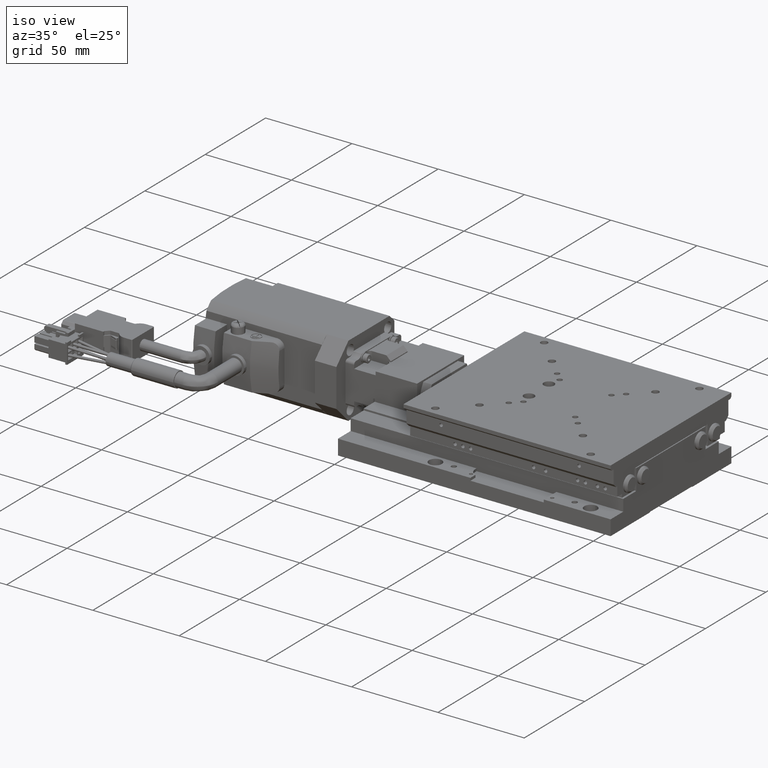
[diagram: clean part render]
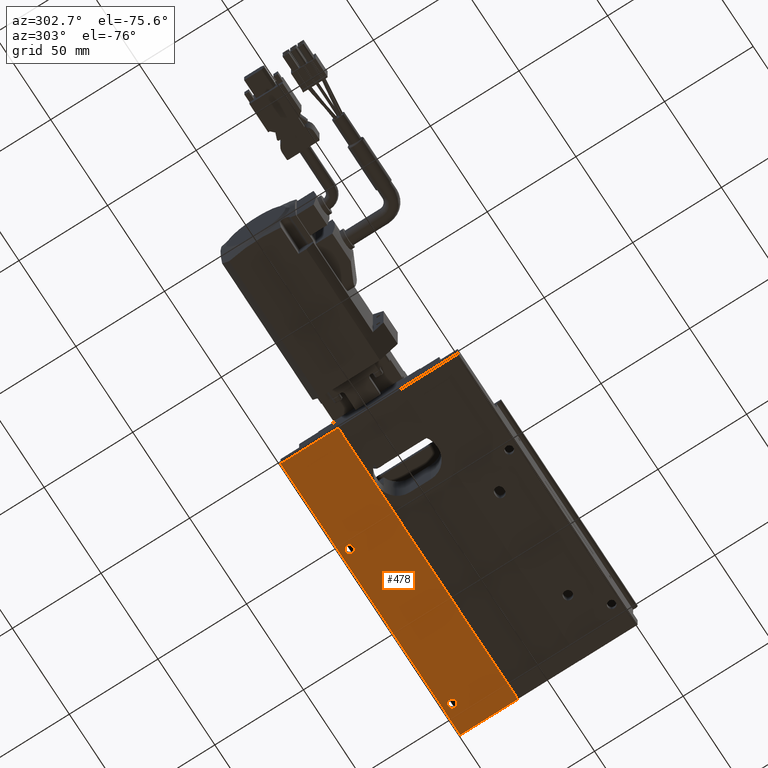
[diagram: tour spotlight — one face highlighted and labeled with its STEP entity id]
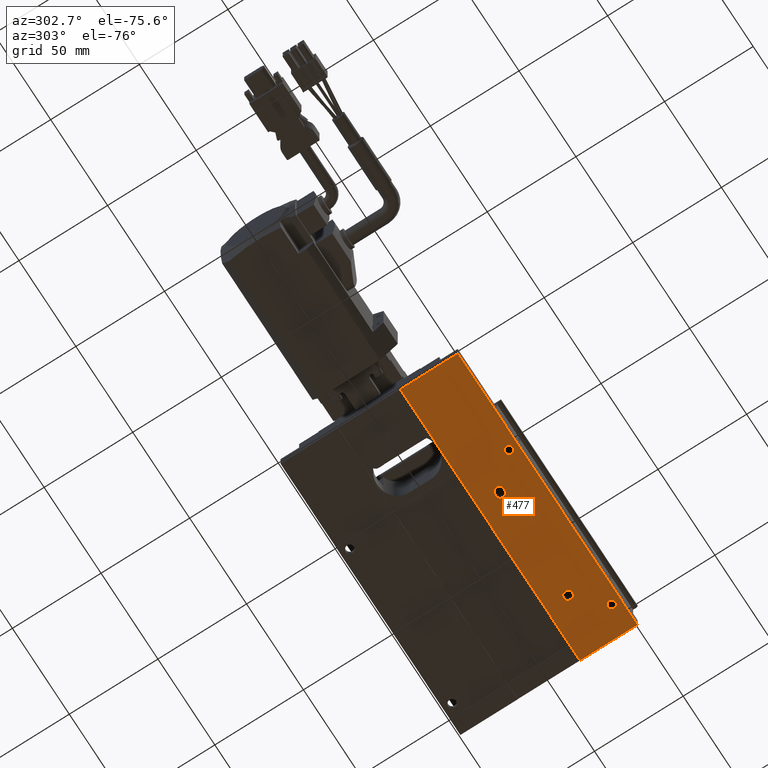
[diagram: tour spotlight — one face highlighted and labeled with its STEP entity id]
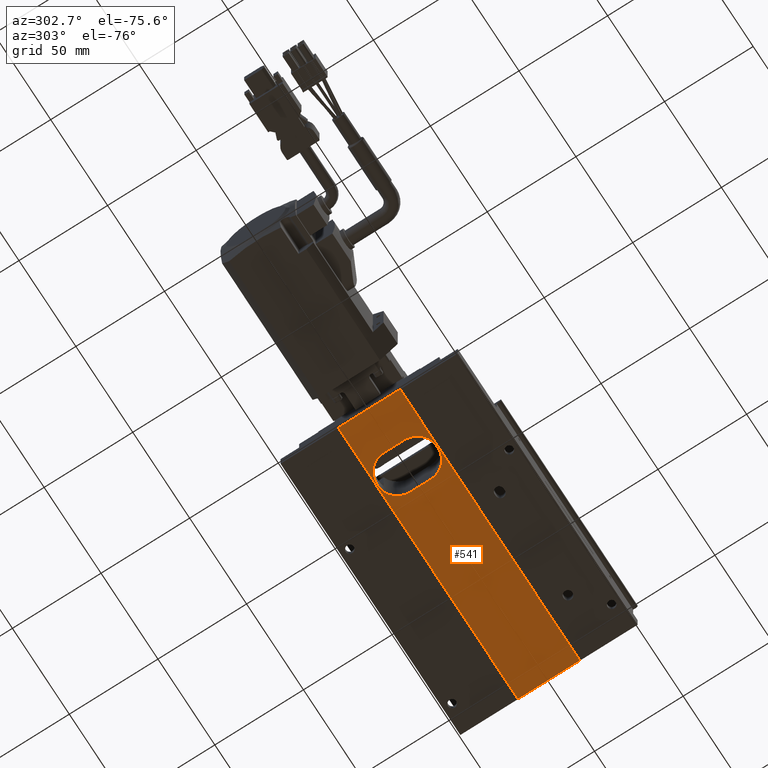
[diagram: tour spotlight — one face highlighted and labeled with its STEP entity id]
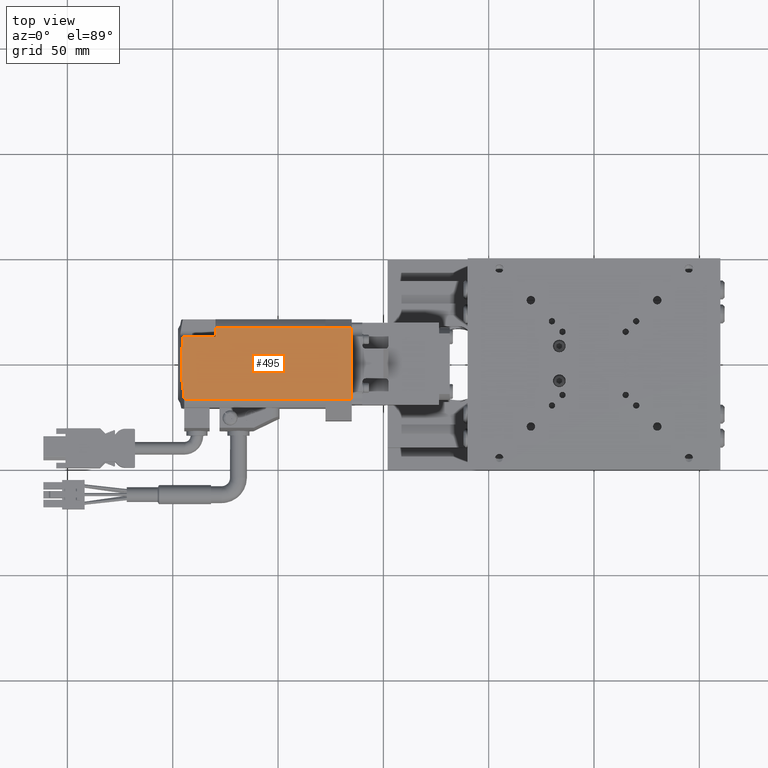
[diagram: tour spotlight — one face highlighted and labeled with its STEP entity id]
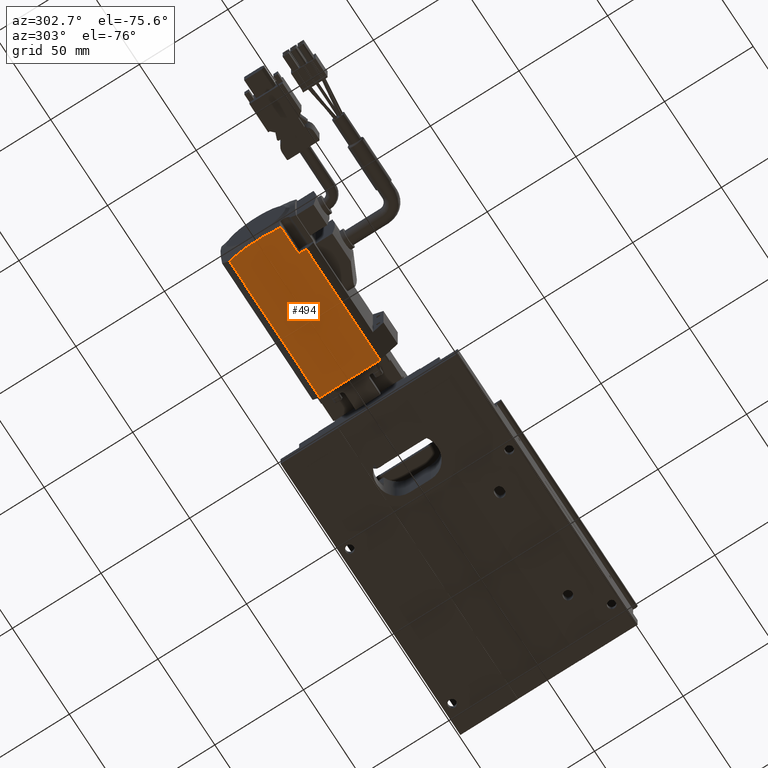
[diagram: tour spotlight — one face highlighted and labeled with its STEP entity id]
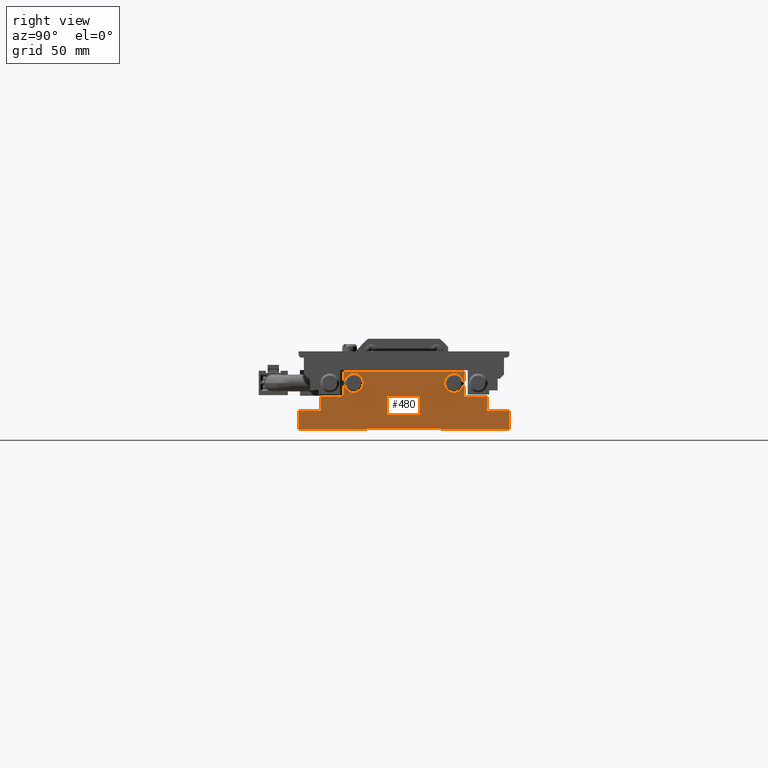
[diagram: tour spotlight — one face highlighted and labeled with its STEP entity id]
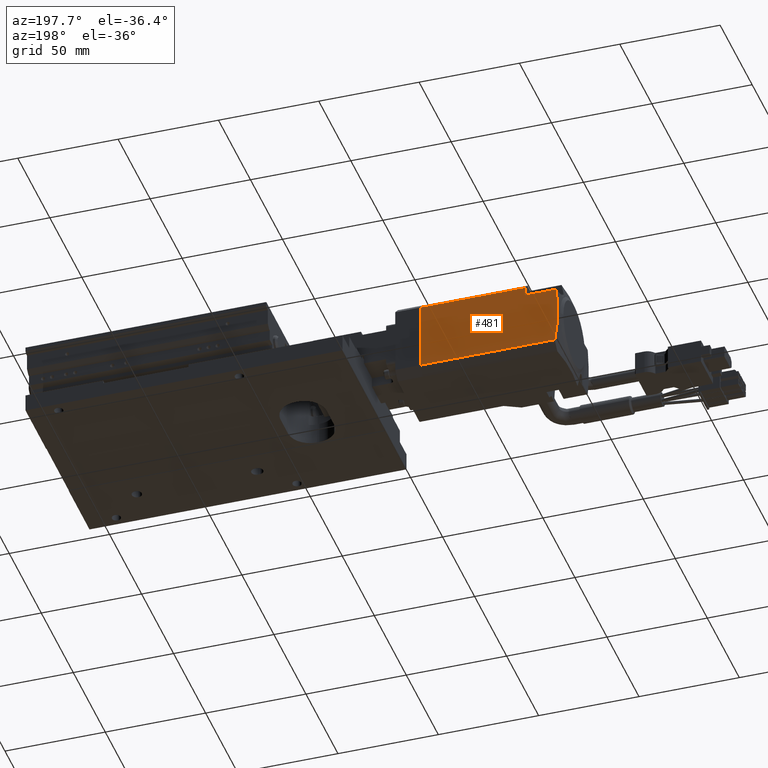
[diagram: tour spotlight — one face highlighted and labeled with its STEP entity id]
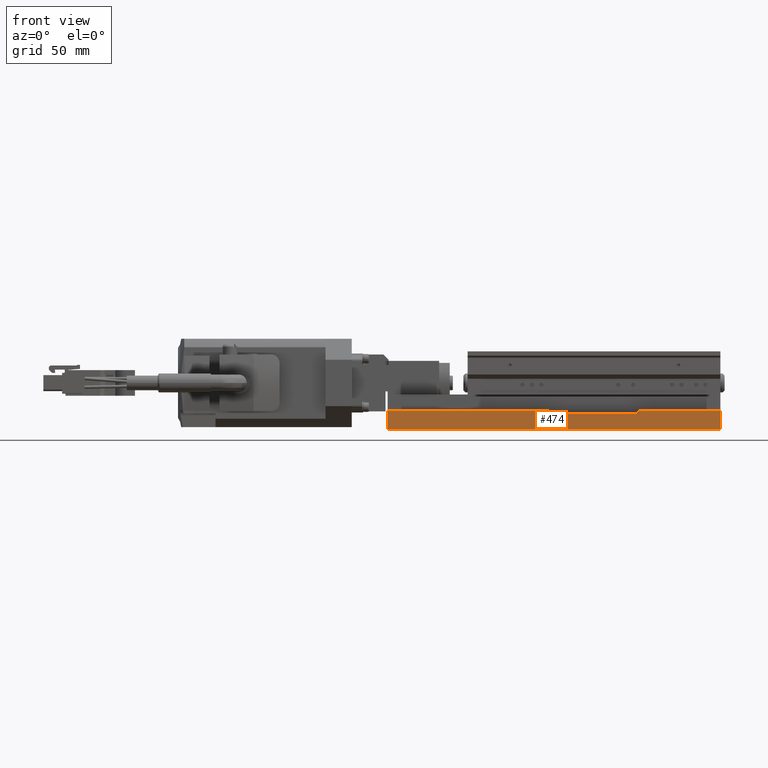
[diagram: tour spotlight — one face highlighted and labeled with its STEP entity id]
A machine part: a face-by-face anatomy tour. The part has 1264 B-rep faces; the first image is the clean iso view, then the 8 largest visible faces are spotlighted one at a time (largest first), each with its STEP entity span.

Face 1 — auxiliary view, entity #478. In plain terms, the highlighted planar face has unit normal (0, 0, -1).
Definition (entity closure, byte-faithful):
#478=ADVANCED_FACE('',(#5124,#5125,#5126),#5123,.T.);
#5123=PLANE('',#16819);
#5124=FACE_OUTER_BOUND('',#16820,.T.);
#5125=FACE_BOUND('',#16821,.T.);
#5126=FACE_BOUND('',#16822,.T.);
#16816=CARTESIAN_POINT('',(7.00000000000E+01,5.32500000000E+01,6.93889390391E-15));
#16817=DIRECTION('',(0.00000000000E+00,0.00000000000E+00,-1.00000000000E+00));
#16818=DIRECTION('',(0.00000000000E+00,-1.00000000000E+00,0.00000000000E+00));
#16819=AXIS2_PLACEMENT_3D('',#16816,#16817,#16818);
#16820=EDGE_LOOP('',(#23971,#23972,#23973,#23974));
#16821=EDGE_LOOP('',(#23975,#23976));
#16822=EDGE_LOOP('',(#23977,#23978));
#23971=ORIENTED_EDGE('',*,*,#29362,.F.);
#23972=ORIENTED_EDGE('',*,*,#29363,.F.);
#23973=ORIENTED_EDGE('',*,*,#29364,.T.);
#23974=ORIENTED_EDGE('',*,*,#29365,.T.);
#23975=ORIENTED_EDGE('',*,*,#29366,.T.);
#23976=ORIENTED_EDGE('',*,*,#29367,.T.);
#23977=ORIENTED_EDGE('',*,*,#29368,.T.);
#23978=ORIENTED_EDGE('',*,*,#29369,.T.);
#29362=EDGE_CURVE('',#38106,#38107,#38108,.T.);
#29363=EDGE_CURVE('',#38114,#38106,#38115,.T.);
#29364=EDGE_CURVE('',#38114,#38121,#38122,.T.);
#29365=EDGE_CURVE('',#38121,#38107,#38128,.T.);
#29366=EDGE_CURVE('',#38134,#38135,#38136,.T.);
#29367=EDGE_CURVE('',#38135,#38134,#38142,.T.);
#29368=EDGE_CURVE('',#38148,#38149,#38150,.T.);
#29369=EDGE_CURVE('',#38149,#38148,#38156,.T.);
#38106=VERTEX_POINT('',#55825);
#38107=VERTEX_POINT('',#55826);
#38108=LINE('',#55827,#55828);
#38114=VERTEX_POINT('',#55830);
#38115=LINE('',#55831,#55832);
#38121=VERTEX_POINT('',#55834);
#38122=LINE('',#55835,#55836);
#38128=LINE('',#55838,#55839);
#38134=VERTEX_POINT('',#55841);
#38135=VERTEX_POINT('',#55842);
#38136=CIRCLE('',#55846,2.25000000000E+00);
#38142=CIRCLE('',#55850,2.25000000000E+00);
#38148=VERTEX_POINT('',#55851);
#38149=VERTEX_POINT('',#55852);
#38150=CIRCLE('',#55856,2.25000000000E+00);
#38156=CIRCLE('',#55860,2.25000000000E+00);
#55825=CARTESIAN_POINT('',(-9.80000000000E+01,1.75000000000E+01,-3.46944695195E-15));
#55826=CARTESIAN_POINT('',(6.00000000000E+01,1.75000000000E+01,-3.46944695195E-15));
#55827=CARTESIAN_POINT('',(-9.80000000000E+01,1.75000000000E+01,-3.46944695195E-15));
#55828=VECTOR('',#55829,1.58000000000E+02);
#55829=DIRECTION('',(1.00000000000E+00,0.00000000000E+00,0.00000000000E+00));
#55830=CARTESIAN_POINT('',(-9.80000000000E+01,5.00000000000E+01,6.93889390391E-15));
#55831=CARTESIAN_POINT('',(-9.80000000000E+01,5.00000000000E+01,6.93889390391E-15));
#55832=VECTOR('',#55833,3.25000000000E+01);
#55833=DIRECTION('',(0.00000000000E+00,-1.00000000000E+00,0.00000000000E+00));
#55834=CARTESIAN_POINT('',(6.00000000000E+01,5.00000000000E+01,6.93889390391E-15));
#55835=CARTESIAN_POINT('',(-9.80000000000E+01,5.00000000000E+01,6.93889390391E-15));
#55836=VECTOR('',#55837,1.58000000000E+02);
#55837=DIRECTION('',(1.00000000000E+00,0.00000000000E+00,0.00000000000E+00));
#55838=CARTESIAN_POINT('',(6.00000000000E+01,5.00000000000E+01,6.93889390391E-15));
#55839=VECTOR('',#55840,3.25000000000E+01);
#55840=DIRECTION('',(0.00000000000E+00,-1.00000000000E+00,0.00000000000E+00));
#55841=CARTESIAN_POINT('',(-4.50000000000E+01,4.27500000000E+01,6.93889390391E-15));
#55842=CARTESIAN_POINT('',(-4.50000000000E+01,4.72500000000E+01,6.93889390391E-15));
#55843=CARTESIAN_POINT('',(-4.50000000000E+01,4.50000000000E+01,6.93889390391E-15));
#55844=DIRECTION('',(0.00000000000E+00,0.00000000000E+00,1.00000000000E+00));
#55845=DIRECTION('',(-1.22464679915E-16,-1.00000000000E+00,0.00000000000E+00));
#55846=AXIS2_PLACEMENT_3D('',#55843,#55844,#55845);
#55847=CARTESIAN_POINT('',(-4.50000000000E+01,4.50000000000E+01,6.93889390391E-15));
#55848=DIRECTION('',(0.00000000000E+00,0.00000000000E+00,1.00000000000E+00));
#55849=DIRECTION('',(-1.22464679915E-16,-1.00000000000E+00,0.00000000000E+00));
#55850=AXIS2_PLACEMENT_3D('',#55847,#55848,#55849);
#55851=CARTESIAN_POINT('',(4.50000000000E+01,4.27500000000E+01,6.93889390391E-15));
#55852=CARTESIAN_POINT('',(4.50000000000E+01,4.72500000000E+01,6.93889390391E-15));
#55853=CARTESIAN_POINT('',(4.50000000000E+01,4.50000000000E+01,6.93889390391E-15));
#55854=DIRECTION('',(0.00000000000E+00,0.00000000000E+00,1.00000000000E+00));
#55855=DIRECTION('',(-1.22464679915E-16,-1.00000000000E+00,0.00000000000E+00));
#55856=AXIS2_PLACEMENT_3D('',#55853,#55854,#55855);
#55857=CARTESIAN_POINT('',(4.50000000000E+01,4.50000000000E+01,6.93889390391E-15));
#55858=DIRECTION('',(0.00000000000E+00,0.00000000000E+00,1.00000000000E+00));
#55859=DIRECTION('',(-1.22464679915E-16,-1.00000000000E+00,0.00000000000E+00));
#55860=AXIS2_PLACEMENT_3D('',#55857,#55858,#55859);

Face 2 — auxiliary view, entity #477. In plain terms, the highlighted planar face has unit normal (0, 0, -1).
Definition (entity closure, byte-faithful):
#477=ADVANCED_FACE('',(#5110,#5111,#5112,#5113,#5114),#5109,.T.);
#5109=PLANE('',#16810);
#5110=FACE_OUTER_BOUND('',#16811,.T.);
#5111=FACE_BOUND('',#16812,.T.);
#5112=FACE_BOUND('',#16813,.T.);
#5113=FACE_BOUND('',#16814,.T.);
#5114=FACE_BOUND('',#16815,.T.);
#16807=CARTESIAN_POINT('',(7.00000000000E+01,-1.42500000000E+01,6.93889390391E-15));
#16808=DIRECTION('',(0.00000000000E+00,0.00000000000E+00,-1.00000000000E+00));
#16809=DIRECTION('',(0.00000000000E+00,-1.00000000000E+00,0.00000000000E+00));
#16810=AXIS2_PLACEMENT_3D('',#16807,#16808,#16809);
#16811=EDGE_LOOP('',(#23957,#23958,#23959,#23960));
#16812=EDGE_LOOP('',(#23961,#23962));
#16813=EDGE_LOOP('',(#23963,#23964));
#16814=EDGE_LOOP('',(#23965,#23966));
#16815=EDGE_LOOP('',(#23967,#23968,#23969,#23970));
#23957=ORIENTED_EDGE('',*,*,#29349,.F.);
#23958=ORIENTED_EDGE('',*,*,#29350,.T.);
#23959=ORIENTED_EDGE('',*,*,#29335,.T.);
#23960=ORIENTED_EDGE('',*,*,#29351,.F.);
#23961=ORIENTED_EDGE('',*,*,#29352,.T.);
#23962=ORIENTED_EDGE('',*,*,#29353,.T.);
#23963=ORIENTED_EDGE('',*,*,#29354,.T.);
#23964=ORIENTED_EDGE('',*,*,#29355,.T.);
#23965=ORIENTED_EDGE('',*,*,#29356,.T.);
#23966=ORIENTED_EDGE('',*,*,#29357,.T.);
#23967=ORIENTED_EDGE('',*,*,#29358,.T.);
#23968=ORIENTED_EDGE('',*,*,#29359,.T.);
#23969=ORIENTED_EDGE('',*,*,#29360,.T.);
#23970=ORIENTED_EDGE('',*,*,#29361,.T.);
#29335=EDGE_CURVE('',#37919,#37912,#37920,.T.);
#29349=EDGE_CURVE('',#38016,#38017,#38018,.T.);
#29350=EDGE_CURVE('',#38016,#37919,#38024,.T.);
#29351=EDGE_CURVE('',#38017,#37912,#38030,.T.);
#29352=EDGE_CURVE('',#38036,#38037,#38038,.T.);
#29353=EDGE_CURVE('',#38037,#38036,#38044,.T.);
#29354=EDGE_CURVE('',#38050,#38051,#38052,.T.);
#29355=EDGE_CURVE('',#38051,#38050,#38058,.T.);
#29356=EDGE_CURVE('',#38064,#38065,#38066,.T.);
#29357=EDGE_CURVE('',#38065,#38064,#38072,.T.);
#29358=EDGE_CURVE('',#38078,#38079,#38080,.T.);
#29359=EDGE_CURVE('',#38079,#38086,#38087,.T.);
#29360=EDGE_CURVE('',#38086,#38093,#38094,.T.);
#29361=EDGE_CURVE('',#38093,#38078,#38100,.T.);
#37912=VERTEX_POINT('',#55705);
#37919=VERTEX_POINT('',#55709);
#37920=LINE('',#55710,#55711);
#38016=VERTEX_POINT('',#55766);
#38017=VERTEX_POINT('',#55767);
#38018=LINE('',#55768,#55769);
#38024=LINE('',#55771,#55772);
#38030=LINE('',#55774,#55775);
#38036=VERTEX_POINT('',#55777);
#38037=VERTEX_POINT('',#55778);
#38038=CIRCLE('',#55782,2.50000000000E+00);
#38044=CIRCLE('',#55786,2.50000000000E+00);
#38050=VERTEX_POINT('',#55787);
#38051=VERTEX_POINT('',#55788);
#38052=CIRCLE('',#55792,2.25000000000E+00);
#38058=CIRCLE('',#55796,2.25000000000E+00);
#38064=VERTEX_POINT('',#55797);
#38065=VERTEX_POINT('',#55798);
#38066=CIRCLE('',#55802,2.25000000000E+00);
#38072=CIRCLE('',#55806,2.25000000000E+00);
#38078=VERTEX_POINT('',#55807);
#38079=VERTEX_POINT('',#55808);
#38080=CIRCLE('',#55812,2.50000000000E+00);
#38086=VERTEX_POINT('',#55813);
#38087=LINE('',#55814,#55815);
#38093=VERTEX_POINT('',#55817);
#38094=CIRCLE('',#55821,2.50000000000E+00);
#38100=LINE('',#55822,#55823);
#55705=CARTESIAN_POINT('',(-9.80000000000E+01,-5.00000000000E+01,6.93889390391E-15));
#55709=CARTESIAN_POINT('',(6.00000000000E+01,-5.00000000000E+01,6.93889390391E-15));
#55710=CARTESIAN_POINT('',(6.00000000000E+01,-5.00000000000E+01,6.93889390391E-15));
#55711=VECTOR('',#55712,1.58000000000E+02);
#55712=DIRECTION('',(-1.00000000000E+00,0.00000000000E+00,0.00000000000E+00));
#55766=CARTESIAN_POINT('',(6.00000000000E+01,-1.75000000000E+01,-3.46944695195E-15));
#55767=CARTESIAN_POINT('',(-9.80000000000E+01,-1.75000000000E+01,-3.46944695195E-15));
#55768=CARTESIAN_POINT('',(6.00000000000E+01,-1.75000000000E+01,-3.46944695195E-15));
#55769=VECTOR('',#55770,1.58000000000E+02);
#55770=DIRECTION('',(-1.00000000000E+00,0.00000000000E+00,0.00000000000E+00));
#55771=CARTESIAN_POINT('',(6.00000000000E+01,-1.75000000000E+01,6.93889390391E-15));
#55772=VECTOR('',#55773,3.25000000000E+01);
#55773=DIRECTION('',(0.00000000000E+00,-1.00000000000E+00,0.00000000000E+00));
#55774=CARTESIAN_POINT('',(-9.80000000000E+01,-1.75000000000E+01,6.93889390391E-15));
#55775=VECTOR('',#55776,3.25000000000E+01);
#55776=DIRECTION('',(0.00000000000E+00,-1.00000000000E+00,0.00000000000E+00));
#55777=CARTESIAN_POINT('',(3.00000000000E+01,-3.25000000000E+01,3.18391146781E-11));
#55778=CARTESIAN_POINT('',(3.00000000000E+01,-2.75000000000E+01,3.18391146781E-11));
#55779=CARTESIAN_POINT('',(3.00000000000E+01,-3.00000000000E+01,3.18391146781E-11));
#55780=DIRECTION('',(0.00000000000E+00,0.00000000000E+00,1.00000000000E+00));
#55781=DIRECTION('',(-1.22464679915E-16,-1.00000000000E+00,0.00000000000E+00));
#55782=AXIS2_PLACEMENT_3D('',#55779,#55780,#55781);
#55783=CARTESIAN_POINT('',(3.00000000000E+01,-3.00000000000E+01,3.18391146781E-11));
#55784=DIRECTION('',(0.00000000000E+00,0.00000000000E+00,1.00000000000E+00));
#55785=DIRECTION('',(-1.22464679915E-16,-1.00000000000E+00,0.00000000000E+00));
#55786=AXIS2_PLACEMENT_3D('',#55783,#55784,#55785);
#55787=CARTESIAN_POINT('',(4.50000000000E+01,-4.72500000000E+01,6.93889390391E-15));
#55788=CARTESIAN_POINT('',(4.50000000000E+01,-4.27500000000E+01,6.93889390391E-15));
#55789=CARTESIAN_POINT('',(4.50000000000E+01,-4.50000000000E+01,6.93889390391E-15));
#55790=DIRECTION('',(0.00000000000E+00,0.00000000000E+00,1.00000000000E+00));
#55791=DIRECTION('',(-1.22464679915E-16,-1.00000000000E+00,0.00000000000E+00));
#55792=AXIS2_PLACEMENT_3D('',#55789,#55790,#55791);
#55793=CARTESIAN_POINT('',(4.50000000000E+01,-4.50000000000E+01,6.93889390391E-15));
#55794=DIRECTION('',(0.00000000000E+00,0.00000000000E+00,1.00000000000E+00));
#55795=DIRECTION('',(-1.22464679915E-16,-1.00000000000E+00,0.00000000000E+00));
#55796=AXIS2_PLACEMENT_3D('',#55793,#55794,#55795);
#55797=CARTESIAN_POINT('',(-4.50000000000E+01,-4.72500000000E+01,6.93889390391E-15));
#55798=CARTESIAN_POINT('',(-4.50000000000E+01,-4.27500000000E+01,6.93889390391E-15));
#55799=CARTESIAN_POINT('',(-4.50000000000E+01,-4.50000000000E+01,6.93889390391E-15));
#55800=DIRECTION('',(0.00000000000E+00,0.00000000000E+00,1.00000000000E+00));
#55801=DIRECTION('',(-1.22464679915E-16,-1.00000000000E+00,0.00000000000E+00));
#55802=AXIS2_PLACEMENT_3D('',#55799,#55800,#55801);
#55803=CARTESIAN_POINT('',(-4.50000000000E+01,-4.50000000000E+01,6.93889390391E-15));
#55804=DIRECTION('',(0.00000000000E+00,0.00000000000E+00,1.00000000000E+00));
#55805=DIRECTION('',(-1.22464679915E-16,-1.00000000000E+00,0.00000000000E+00));
#55806=AXIS2_PLACEMENT_3D('',#55803,#55804,#55805);
#55807=CARTESIAN_POINT('',(-2.95000000000E+01,-3.25000000000E+01,6.93889390391E-15));
#55808=CARTESIAN_POINT('',(-2.95000000000E+01,-2.75000000000E+01,3.18399820398E-11));
#55809=CARTESIAN_POINT('',(-2.95000000000E+01,-3.00000000000E+01,3.18391146781E-11));
#55810=DIRECTION('',(0.00000000000E+00,0.00000000000E+00,1.00000000000E+00));
#55811=DIRECTION('',(-0.00000000000E+00,1.00000000000E+00,-0.00000000000E+00));
#55812=AXIS2_PLACEMENT_3D('',#55809,#55810,#55811);
#55813=CARTESIAN_POINT('',(-3.05000000000E+01,-2.75000000000E+01,3.18399820398E-11));
#55814=CARTESIAN_POINT('',(-2.95000000000E+01,-2.75000000000E+01,3.18399820398E-11));
#55815=VECTOR('',#55816,1.00000000000E+00);
#55816=DIRECTION('',(-1.00000000000E+00,0.00000000000E+00,0.00000000000E+00));
#55817=CARTESIAN_POINT('',(-3.05000000000E+01,-3.25000000000E+01,3.18399820398E-11));
#55818=CARTESIAN_POINT('',(-3.05000000000E+01,-3.00000000000E+01,3.18391146781E-11));
#55819=DIRECTION('',(0.00000000000E+00,0.00000000000E+00,1.00000000000E+00));
#55820=DIRECTION('',(-0.00000000000E+00,1.00000000000E+00,-0.00000000000E+00));
#55821=AXIS2_PLACEMENT_3D('',#55818,#55819,#55820);
#55822=CARTESIAN_POINT('',(-3.05000000000E+01,-3.25000000000E+01,3.18399820398E-11));
#55823=VECTOR('',#55824,1.00000000000E+00);
#55824=DIRECTION('',(1.00000000000E+00,0.00000000000E+00,0.00000000000E+00));

Face 3 — auxiliary view, entity #541. In plain terms, the highlighted planar face has unit normal (0, 0, 1).
Definition (entity closure, byte-faithful):
#541=ADVANCED_FACE('',(#5781,#5782),#5780,.F.);
#5780=PLANE('',#17161);
#5781=FACE_OUTER_BOUND('',#17162,.T.);
#5782=FACE_BOUND('',#17163,.T.);
#17158=CARTESIAN_POINT('',(7.00000000000E+01,-2.10000000000E+01,3.00000000000E-01));
#17159=DIRECTION('',(0.00000000000E+00,-0.00000000000E+00,1.00000000000E+00));
#17160=DIRECTION('',(0.00000000000E+00,1.00000000000E+00,0.00000000000E+00));
#17161=AXIS2_PLACEMENT_3D('',#17158,#17159,#17160);
#17162=EDGE_LOOP('',(#24367,#24368,#24369,#24370));
#17163=EDGE_LOOP('',(#24371,#24372,#24373,#24374,#24375,#24376,#24377,#24378));
#24367=ORIENTED_EDGE('',*,*,#29657,.F.);
#24368=ORIENTED_EDGE('',*,*,#29391,.T.);
#24369=ORIENTED_EDGE('',*,*,#29658,.F.);
#24370=ORIENTED_EDGE('',*,*,#29373,.F.);
#24371=ORIENTED_EDGE('',*,*,#29560,.F.);
#24372=ORIENTED_EDGE('',*,*,#29659,.T.);
#24373=ORIENTED_EDGE('',*,*,#29566,.T.);
#24374=ORIENTED_EDGE('',*,*,#29660,.T.);
#24375=ORIENTED_EDGE('',*,*,#29570,.F.);
#24376=ORIENTED_EDGE('',*,*,#29661,.T.);
#24377=ORIENTED_EDGE('',*,*,#29564,.F.);
#24378=ORIENTED_EDGE('',*,*,#29662,.T.);
#29373=EDGE_CURVE('',#38176,#38183,#38184,.T.);
#29391=EDGE_CURVE('',#38303,#38296,#38304,.T.);
#29560=EDGE_CURVE('',#39453,#39460,#39461,.T.);
#29564=EDGE_CURVE('',#39481,#39488,#39489,.T.);
#29566=EDGE_CURVE('',#39501,#39502,#39503,.T.);
#29570=EDGE_CURVE('',#39529,#39530,#39531,.T.);
#29657=EDGE_CURVE('',#38303,#38176,#40118,.T.);
#29658=EDGE_CURVE('',#38183,#38296,#40124,.T.);
#29659=EDGE_CURVE('',#39453,#39501,#40130,.T.);
#29660=EDGE_CURVE('',#39502,#39530,#40136,.T.);
#29661=EDGE_CURVE('',#39529,#39488,#40142,.T.);
#29662=EDGE_CURVE('',#39481,#39460,#40148,.T.);
#38176=VERTEX_POINT('',#55869);
#38183=VERTEX_POINT('',#55873);
#38184=LINE('',#55874,#55875);
#38296=VERTEX_POINT('',#55935);
#38303=VERTEX_POINT('',#55939);
#38304=LINE('',#55940,#55941);
#39453=VERTEX_POINT('',#56744);
#39460=VERTEX_POINT('',#56748);
#39461=LINE('',#56749,#56750);
#39481=VERTEX_POINT('',#56760);
#39488=VERTEX_POINT('',#56764);
#39489=LINE('',#56765,#56766);
#39501=VERTEX_POINT('',#56771);
#39502=VERTEX_POINT('',#56772);
#39503=LINE('',#56773,#56774);
#39529=VERTEX_POINT('',#56787);
#39530=VERTEX_POINT('',#56788);
#39531=LINE('',#56789,#56790);
#40118=LINE('',#57146,#57147);
#40124=LINE('',#57149,#57150);
#40130=CIRCLE('',#57155,1.10000000000E+01);
#40136=CIRCLE('',#57159,1.10000000000E+01);
#40142=CIRCLE('',#57163,1.10000000000E+01);
#40148=CIRCLE('',#57167,1.10000000000E+01);
#55869=CARTESIAN_POINT('',(-9.80000000000E+01,1.75000000000E+01,3.00000000000E-01));
#55873=CARTESIAN_POINT('',(-9.80000000000E+01,-1.75000000000E+01,3.00000000000E-01));
#55874=CARTESIAN_POINT('',(-9.80000000000E+01,1.75000000000E+01,3.00000000000E-01));
#55875=VECTOR('',#55876,3.50000000000E+01);
#55876=DIRECTION('',(0.00000000000E+00,-1.00000000000E+00,0.00000000000E+00));
#55935=CARTESIAN_POINT('',(6.00000000000E+01,-1.75000000000E+01,3.00000000000E-01));
#55939=CARTESIAN_POINT('',(6.00000000000E+01,1.75000000000E+01,3.00000000000E-01));
#55940=CARTESIAN_POINT('',(6.00000000000E+01,1.75000000000E+01,3.00000000000E-01));
#55941=VECTOR('',#55942,3.50000000000E+01);
#55942=DIRECTION('',(0.00000000000E+00,-1.00000000000E+00,0.00000000000E+00));
#56744=CARTESIAN_POINT('',(-7.60000000000E+01,-6.00000000000E+00,3.00000000000E-01));
#56748=CARTESIAN_POINT('',(-7.60000000000E+01,6.00000000000E+00,3.00000000000E-01));
#56749=CARTESIAN_POINT('',(-7.60000000000E+01,-6.00000000000E+00,3.00000000000E-01));
#56750=VECTOR('',#56751,1.20000000000E+01);
#56751=DIRECTION('',(0.00000000000E+00,1.00000000000E+00,0.00000000000E+00));
#56760=CARTESIAN_POINT('',(-6.50000000000E+01,1.70000000000E+01,3.00000000000E-01));
#56764=CARTESIAN_POINT('',(-6.40000000000E+01,1.70000000000E+01,3.00000000000E-01));
#56765=CARTESIAN_POINT('',(-6.50000000000E+01,1.70000000000E+01,3.00000000000E-01));
#56766=VECTOR('',#56767,1.00000000000E+00);
#56767=DIRECTION('',(1.00000000000E+00,0.00000000000E+00,0.00000000000E+00));
#56771=CARTESIAN_POINT('',(-6.50000000000E+01,-1.70000000000E+01,3.00000000000E-01));
#56772=CARTESIAN_POINT('',(-6.40000000000E+01,-1.70000000000E+01,3.00000000000E-01));
#56773=CARTESIAN_POINT('',(-6.50000000000E+01,-1.70000000000E+01,3.00000000000E-01));
#56774=VECTOR('',#56775,1.00000000000E+00);
#56775=DIRECTION('',(1.00000000000E+00,0.00000000000E+00,0.00000000000E+00));
#56787=CARTESIAN_POINT('',(-5.30000000000E+01,6.00000000000E+00,3.00000000000E-01));
#56788=CARTESIAN_POINT('',(-5.30000000000E+01,-6.00000000000E+00,3.00000000000E-01));
#56789=CARTESIAN_POINT('',(-5.30000000000E+01,6.00000000000E+00,3.00000000000E-01));
#56790=VECTOR('',#56791,1.20000000000E+01);
#56791=DIRECTION('',(0.00000000000E+00,-1.00000000000E+00,0.00000000000E+00));
#57146=CARTESIAN_POINT('',(6.00000000000E+01,1.75000000000E+01,3.00000000000E-01));
#57147=VECTOR('',#57148,1.58000000000E+02);
#57148=DIRECTION('',(-1.00000000000E+00,0.00000000000E+00,0.00000000000E+00));
#57149=CARTESIAN_POINT('',(-9.80000000000E+01,-1.75000000000E+01,3.00000000000E-01));
#57150=VECTOR('',#57151,1.58000000000E+02);
#57151=DIRECTION('',(1.00000000000E+00,0.00000000000E+00,0.00000000000E+00));
#57152=CARTESIAN_POINT('',(-6.50000000000E+01,-6.00000000000E+00,3.00000000000E-01));
#57153=DIRECTION('',(0.00000000000E+00,0.00000000000E+00,1.00000000000E+00));
#57154=DIRECTION('',(-0.00000000000E+00,1.00000000000E+00,-0.00000000000E+00));
#57155=AXIS2_PLACEMENT_3D('',#57152,#57153,#57154);
#57156=CARTESIAN_POINT('',(-6.40000000000E+01,-6.00000000000E+00,3.00000000000E-01));
#57157=DIRECTION('',(0.00000000000E+00,0.00000000000E+00,1.00000000000E+00));
#57158=DIRECTION('',(-0.00000000000E+00,1.00000000000E+00,-0.00000000000E+00));
#57159=AXIS2_PLACEMENT_3D('',#57156,#57157,#57158);
#57160=CARTESIAN_POINT('',(-6.40000000000E+01,6.00000000000E+00,3.00000000000E-01));
#57161=DIRECTION('',(0.00000000000E+00,0.00000000000E+00,1.00000000000E+00));
#57162=DIRECTION('',(-0.00000000000E+00,1.00000000000E+00,-0.00000000000E+00));
#57163=AXIS2_PLACEMENT_3D('',#57160,#57161,#57162);
#57164=CARTESIAN_POINT('',(-6.50000000000E+01,6.00000000000E+00,3.00000000000E-01));
#57165=DIRECTION('',(0.00000000000E+00,0.00000000000E+00,1.00000000000E+00));
#57166=DIRECTION('',(-0.00000000000E+00,1.00000000000E+00,-0.00000000000E+00));
#57167=AXIS2_PLACEMENT_3D('',#57164,#57165,#57166);

Face 4 — top view, entity #495. In plain terms, the highlighted planar face has unit normal (-0, 0, -1).
Definition (entity closure, byte-faithful):
#495=ADVANCED_FACE('',(#5300),#5299,.F.);
#5299=PLANE('',#16910);
#5300=FACE_OUTER_BOUND('',#16911,.T.);
#16907=CARTESIAN_POINT('',(-1.06789430939E+02,-2.04000071063E+01,4.29999940878E+01));
#16908=DIRECTION('',(-2.85476031338E-07,5.04870979341E-27,-1.00000000000E+00));
#16909=DIRECTION('',(-1.00000000000E+00,2.85465837313E-07,2.85476031338E-07));
#16910=AXIS2_PLACEMENT_3D('',#16907,#16908,#16909);
#16911=EDGE_LOOP('',(#24100,#24101,#24102,#24103,#24104,#24105,#24106,#24107,#24108,#24109));
#24100=ORIENTED_EDGE('',*,*,#29446,.T.);
#24101=ORIENTED_EDGE('',*,*,#29465,.F.);
#24102=ORIENTED_EDGE('',*,*,#29466,.T.);
#24103=ORIENTED_EDGE('',*,*,#29467,.T.);
#24104=ORIENTED_EDGE('',*,*,#29468,.T.);
#24105=ORIENTED_EDGE('',*,*,#29469,.F.);
#24106=ORIENTED_EDGE('',*,*,#29439,.T.);
#24107=ORIENTED_EDGE('',*,*,#29430,.T.);
#24108=ORIENTED_EDGE('',*,*,#29470,.T.);
#24109=ORIENTED_EDGE('',*,*,#29471,.T.);
#29430=EDGE_CURVE('',#38570,#38563,#38571,.T.);
#29439=EDGE_CURVE('',#38632,#38570,#38633,.T.);
#29446=EDGE_CURVE('',#38681,#38674,#38682,.T.);
#29465=EDGE_CURVE('',#38809,#38674,#38810,.T.);
#29466=EDGE_CURVE('',#38809,#38816,#38817,.T.);
#29467=EDGE_CURVE('',#38816,#38823,#38824,.T.);
#29468=EDGE_CURVE('',#38823,#38830,#38831,.T.);
#29469=EDGE_CURVE('',#38632,#38830,#38837,.T.);
#29470=EDGE_CURVE('',#38563,#38843,#38844,.T.);
#29471=EDGE_CURVE('',#38843,#38681,#38850,.T.);
#38563=VERTEX_POINT('',#56173);
#38570=VERTEX_POINT('',#56177);
#38571=LINE('',#56178,#56179);
#38632=VERTEX_POINT('',#56216);
#38633=LINE('',#56217,#56218);
#38674=VERTEX_POINT('',#56244);
#38681=VERTEX_POINT('',#56249);
#38682=LINE('',#56250,#56251);
#38809=VERTEX_POINT('',#56329);
#38810=LINE('',#56330,#56331);
#38816=VERTEX_POINT('',#56333);
#38817=LINE('',#56334,#56335);
#38823=VERTEX_POINT('',#56337);
#38824=LINE('',#56338,#56339);
#38830=VERTEX_POINT('',#56341);
#38831=LINE('',#56342,#56343);
#38837=LINE('',#56345,#56346);
#38843=VERTEX_POINT('',#56348);
#38844=LINE('',#56349,#56350);
#38850=CIRCLE('',#56355,9.77701385905E+01);
#56173=CARTESIAN_POINT('',(-1.79699979205E+02,1.26000190935E+01,4.30000149020E+01));
#56177=CARTESIAN_POINT('',(-1.79699977958E+02,1.69705818420E+01,4.30000149020E+01));
#56178=CARTESIAN_POINT('',(-1.79699977958E+02,1.69705818420E+01,4.30000149020E+01));
#56179=VECTOR('',#56180,4.37056274848E+00);
#56180=DIRECTION('',(-2.85465840091E-07,-1.00000000000E+00,8.12873280457E-14));
#56216=CARTESIAN_POINT('',(-1.27499986375E+02,1.69705669407E+01,4.30000000001E+01));
#56217=CARTESIAN_POINT('',(-1.27499986375E+02,1.69705669407E+01,4.30000000001E+01));
#56218=VECTOR('',#56219,5.21999915827E+01);
#56219=DIRECTION('',(-1.00000000000E+00,2.85465837318E-07,2.85476031362E-07));
#56244=CARTESIAN_POINT('',(-1.27499994792E+02,-1.69705585562E+01,4.30000000001E+01));
#56249=CARTESIAN_POINT('',(-1.94508790568E+02,-1.69705394275E+01,4.30000191296E+01));
#56250=CARTESIAN_POINT('',(-1.94508790568E+02,-1.69705394275E+01,4.30000191296E+01));
#56251=VECTOR('',#56252,6.70087957758E+01);
#56252=DIRECTION('',(1.00000000000E+00,-2.85465837333E-07,-2.85476031435E-07));
#56329=CARTESIAN_POINT('',(-1.27499994792E+02,-1.69999999990E+01,4.30000000001E+01));
#56330=CARTESIAN_POINT('',(-1.27499994792E+02,-1.69999999990E+01,4.30000000001E+01));
#56331=VECTOR('',#56332,2.94414427660E-02);
#56332=DIRECTION('',(0.00000000000E+00,1.00000000000E+00,0.00000000000E+00));
#56333=CARTESIAN_POINT('',(-1.15000000000E+02,-1.69999999990E+01,4.30000000001E+01));
#56334=CARTESIAN_POINT('',(-1.27499994792E+02,-1.69999999990E+01,4.30000000001E+01));
#56335=VECTOR('',#56336,1.24999947922E+01);
#56336=DIRECTION('',(1.00000000000E+00,0.00000000000E+00,0.00000000000E+00));
#56337=CARTESIAN_POINT('',(-1.15000000000E+02,1.70000083835E+01,4.30000000001E+01));
#56338=CARTESIAN_POINT('',(-1.15000000000E+02,-1.69999999990E+01,4.30000000001E+01));
#56339=VECTOR('',#56340,3.40000083825E+01);
#56340=DIRECTION('',(0.00000000000E+00,1.00000000000E+00,0.00000000000E+00));
#56341=CARTESIAN_POINT('',(-1.27499994792E+02,1.70000083835E+01,4.30000000001E+01));
#56342=CARTESIAN_POINT('',(-1.15000000000E+02,1.70000083835E+01,4.30000000001E+01));
#56343=VECTOR('',#56344,1.24999947922E+01);
#56344=DIRECTION('',(-1.00000000000E+00,0.00000000000E+00,0.00000000000E+00));
#56345=CARTESIAN_POINT('',(-1.27499994792E+02,1.69705669407E+01,4.30000000001E+01));
#56346=VECTOR('',#56347,2.94414427642E-02);
#56347=DIRECTION('',(0.00000000000E+00,1.00000000000E+00,0.00000000000E+00));
#56348=CARTESIAN_POINT('',(-1.95177584756E+02,1.26000235119E+01,4.30000193205E+01));
#56349=CARTESIAN_POINT('',(-1.79699979205E+02,1.26000190935E+01,4.30000149020E+01));
#56350=VECTOR('',#56351,1.54776055507E+01);
#56351=DIRECTION('',(-1.00000000000E+00,2.85465951801E-07,2.85475598176E-07));
#56352=CARTESIAN_POINT('',(-9.82227535071E+01,-4.16541888482E-06,4.29999916422E+01));
#56353=DIRECTION('',(2.85476031338E-07,0.00000000000E+00,1.00000000000E+00));
#56354=DIRECTION('',(9.91660977951E-01,-1.28873988100E-01,-2.83095440418E-07));
#56355=AXIS2_PLACEMENT_3D('',#56352,#56353,#56354);

Face 5 — auxiliary view, entity #494. In plain terms, the highlighted planar face has unit normal (-0, 0, -1).
Definition (entity closure, byte-faithful):
#494=ADVANCED_FACE('',(#5290),#5289,.T.);
#5289=PLANE('',#16905);
#5290=FACE_OUTER_BOUND('',#16906,.T.);
#16902=CARTESIAN_POINT('',(-1.06789429740E+02,-2.04000071063E+01,9.99994087779E-01));
#16903=DIRECTION('',(-2.85476031338E-07,5.04870979341E-27,-1.00000000000E+00));
#16904=DIRECTION('',(-1.00000000000E+00,2.85465837313E-07,2.85476031338E-07));
#16905=AXIS2_PLACEMENT_3D('',#16902,#16903,#16904);
#16906=EDGE_LOOP('',(#24090,#24091,#24092,#24093,#24094,#24095,#24096,#24097,#24098,#24099));
#24090=ORIENTED_EDGE('',*,*,#29448,.F.);
#24091=ORIENTED_EDGE('',*,*,#29458,.T.);
#24092=ORIENTED_EDGE('',*,*,#29459,.T.);
#24093=ORIENTED_EDGE('',*,*,#29460,.F.);
#24094=ORIENTED_EDGE('',*,*,#29461,.T.);
#24095=ORIENTED_EDGE('',*,*,#29462,.T.);
#24096=ORIENTED_EDGE('',*,*,#29454,.F.);
#24097=ORIENTED_EDGE('',*,*,#29435,.F.);
#24098=ORIENTED_EDGE('',*,*,#29463,.T.);
#24099=ORIENTED_EDGE('',*,*,#29464,.F.);
#29435=EDGE_CURVE('',#38598,#38605,#38606,.T.);
#29448=EDGE_CURVE('',#38694,#38695,#38696,.T.);
#29454=EDGE_CURVE('',#38605,#38735,#38736,.T.);
#29458=EDGE_CURVE('',#38694,#38762,#38763,.T.);
#29459=EDGE_CURVE('',#38762,#38769,#38770,.T.);
#29460=EDGE_CURVE('',#38776,#38769,#38777,.T.);
#29461=EDGE_CURVE('',#38776,#38783,#38784,.T.);
#29462=EDGE_CURVE('',#38783,#38735,#38790,.T.);
#29463=EDGE_CURVE('',#38598,#38796,#38797,.T.);
#29464=EDGE_CURVE('',#38695,#38796,#38803,.T.);
#38598=VERTEX_POINT('',#56195);
#38605=VERTEX_POINT('',#56199);
#38606=LINE('',#56200,#56201);
#38694=VERTEX_POINT('',#56257);
#38695=VERTEX_POINT('',#56258);
#38696=LINE('',#56259,#56260);
#38735=VERTEX_POINT('',#56284);
#38736=LINE('',#56285,#56286);
#38762=VERTEX_POINT('',#56302);
#38763=LINE('',#56303,#56304);
#38769=VERTEX_POINT('',#56306);
#38770=LINE('',#56307,#56308);
#38776=VERTEX_POINT('',#56310);
#38777=LINE('',#56311,#56312);
#38783=VERTEX_POINT('',#56314);
#38784=LINE('',#56315,#56316);
#38790=LINE('',#56318,#56319);
#38796=VERTEX_POINT('',#56321);
#38797=LINE('',#56322,#56323);
#38803=CIRCLE('',#56328,9.77701385905E+01);
#56195=CARTESIAN_POINT('',(-1.79699998389E+02,-1.25999809064E+01,1.00001490200E+00));
#56199=CARTESIAN_POINT('',(-1.79699999637E+02,-1.69705436549E+01,1.00001490200E+00));
#56200=CARTESIAN_POINT('',(-1.79699998389E+02,-1.25999809064E+01,1.00001490200E+00));
#56201=VECTOR('',#56202,4.37056274848E+00);
#56202=DIRECTION('',(-2.85465833588E-07,-1.00000000000E+00,8.14905463658E-14));
#56257=CARTESIAN_POINT('',(-1.27499994792E+02,1.69705669407E+01,1.00000000015E+00));
#56258=CARTESIAN_POINT('',(-1.94508792869E+02,1.69705860694E+01,1.00001912955E+00));
#56259=CARTESIAN_POINT('',(-1.27499994792E+02,1.69705669407E+01,1.00000000015E+00));
#56260=VECTOR('',#56261,6.70087980768E+01);
#56261=DIRECTION('',(-1.00000000000E+00,2.85465837445E-07,2.85476031288E-07));
#56284=CARTESIAN_POINT('',(-1.27499994792E+02,-1.69705585562E+01,1.00000000015E+00));
#56285=CARTESIAN_POINT('',(-1.79699999637E+02,-1.69705436549E+01,1.00001490200E+00));
#56286=VECTOR('',#56287,5.22000048445E+01);
#56287=DIRECTION('',(1.00000000000E+00,-2.85465837413E-07,-2.85476031407E-07));
#56302=CARTESIAN_POINT('',(-1.27499994792E+02,1.70000083835E+01,1.00000000015E+00));
#56303=CARTESIAN_POINT('',(-1.27499994792E+02,1.69705669407E+01,1.00000000015E+00));
#56304=VECTOR('',#56305,2.94414427660E-02);
#56305=DIRECTION('',(0.00000000000E+00,1.00000000000E+00,0.00000000000E+00));
#56306=CARTESIAN_POINT('',(-1.15000000000E+02,1.70000083835E+01,1.00000000015E+00));
#56307=CARTESIAN_POINT('',(-1.27499994792E+02,1.70000083835E+01,1.00000000015E+00));
#56308=VECTOR('',#56309,1.24999947922E+01);
#56309=DIRECTION('',(1.00000000000E+00,0.00000000000E+00,0.00000000000E+00));
#56310=CARTESIAN_POINT('',(-1.15000000000E+02,-1.69999999990E+01,1.00000000015E+00));
#56311=CARTESIAN_POINT('',(-1.15000000000E+02,-1.69999999990E+01,1.00000000015E+00));
#56312=VECTOR('',#56313,3.40000083825E+01);
#56313=DIRECTION('',(0.00000000000E+00,1.00000000000E+00,0.00000000000E+00));
#56314=CARTESIAN_POINT('',(-1.27499994792E+02,-1.69999999990E+01,1.00000000015E+00));
#56315=CARTESIAN_POINT('',(-1.15000000000E+02,-1.69999999990E+01,1.00000000015E+00));
#56316=VECTOR('',#56317,1.24999947922E+01);
#56317=DIRECTION('',(-1.00000000000E+00,0.00000000000E+00,0.00000000000E+00));
#56318=CARTESIAN_POINT('',(-1.27499994792E+02,-1.69999999990E+01,1.00000000015E+00));
#56319=VECTOR('',#56320,2.94414427680E-02);
#56320=DIRECTION('',(0.00000000000E+00,1.00000000000E+00,0.00000000000E+00));
#56321=CARTESIAN_POINT('',(-1.95177603940E+02,-1.25999764881E+01,1.00001932048E+00));
#56322=CARTESIAN_POINT('',(-1.79699998389E+02,-1.25999809064E+01,1.00001490200E+00));
#56323=VECTOR('',#56324,1.54776055507E+01);
#56324=DIRECTION('',(-1.00000000000E+00,2.85465837261E-07,2.85476031345E-07));
#56325=CARTESIAN_POINT('',(-9.82227654971E+01,-4.16541888482E-06,9.99991642201E-01));
#56326=DIRECTION('',(2.85476031338E-07,0.00000000000E+00,1.00000000000E+00));
#56327=DIRECTION('',(9.84820403859E-01,-1.73576415862E-01,-2.81142620474E-07));
#56328=AXIS2_PLACEMENT_3D('',#56325,#56326,#56327);

Face 6 — right view, entity #480. In plain terms, the highlighted planar face has unit normal (1, 0, 0).
Definition (entity closure, byte-faithful):
#480=ADVANCED_FACE('',(#5146,#5147,#5148),#5145,.T.);
#5145=PLANE('',#16831);
#5146=FACE_OUTER_BOUND('',#16832,.T.);
#5147=FACE_BOUND('',#16833,.T.);
#5148=FACE_BOUND('',#16834,.T.);
#16828=CARTESIAN_POINT('',(6.00000000000E+01,6.00000000000E+01,3.02500000001E+01));
#16829=DIRECTION('',(1.00000000000E+00,0.00000000000E+00,0.00000000000E+00));
#16830=DIRECTION('',(0.00000000000E+00,-1.00000000000E+00,0.00000000000E+00));
#16831=AXIS2_PLACEMENT_3D('',#16828,#16829,#16830);
#16832=EDGE_LOOP('',(#23999,#24000,#24001,#24002,#24003,#24004,#24005,#24006,#24007,#24008,#24009,#24010,#24011,#24012,#24013,#24014));
#16833=EDGE_LOOP('',(#24015,#24016,#24017));
#16834=EDGE_LOOP('',(#24018,#24019,#24020));
#23999=ORIENTED_EDGE('',*,*,#29384,.T.);
#24000=ORIENTED_EDGE('',*,*,#29385,.F.);
#24001=ORIENTED_EDGE('',*,*,#29386,.T.);
#24002=ORIENTED_EDGE('',*,*,#29387,.F.);
#24003=ORIENTED_EDGE('',*,*,#29388,.F.);
#24004=ORIENTED_EDGE('',*,*,#29389,.F.);
#24005=ORIENTED_EDGE('',*,*,#29336,.T.);
#24006=ORIENTED_EDGE('',*,*,#29350,.F.);
#24007=ORIENTED_EDGE('',*,*,#29390,.F.);
#24008=ORIENTED_EDGE('',*,*,#29391,.F.);
#24009=ORIENTED_EDGE('',*,*,#29392,.F.);
#24010=ORIENTED_EDGE('',*,*,#29365,.F.);
#24011=ORIENTED_EDGE('',*,*,#29393,.T.);
#24012=ORIENTED_EDGE('',*,*,#29394,.T.);
#24013=ORIENTED_EDGE('',*,*,#29395,.F.);
#24014=ORIENTED_EDGE('',*,*,#29348,.T.);
#24015=ORIENTED_EDGE('',*,*,#29396,.F.);
#24016=ORIENTED_EDGE('',*,*,#29397,.F.);
#24017=ORIENTED_EDGE('',*,*,#29398,.F.);
#24018=ORIENTED_EDGE('',*,*,#29399,.T.);
#24019=ORIENTED_EDGE('',*,*,#29400,.T.);
#24020=ORIENTED_EDGE('',*,*,#29401,.T.);
#29336=EDGE_CURVE('',#37876,#37919,#37926,.T.);
#29348=EDGE_CURVE('',#37989,#38003,#38010,.T.);
#29350=EDGE_CURVE('',#38016,#37919,#38024,.T.);
#29365=EDGE_CURVE('',#38121,#38107,#38128,.T.);
#29384=EDGE_CURVE('',#38003,#38255,#38256,.T.);
#29385=EDGE_CURVE('',#38262,#38255,#38263,.T.);
#29386=EDGE_CURVE('',#38262,#38269,#38270,.T.);
#29387=EDGE_CURVE('',#38276,#38269,#38277,.T.);
#29388=EDGE_CURVE('',#38283,#38276,#38284,.T.);
#29389=EDGE_CURVE('',#37876,#38283,#38290,.T.);
#29390=EDGE_CURVE('',#38296,#38016,#38297,.T.);
#29391=EDGE_CURVE('',#38303,#38296,#38304,.T.);
#29392=EDGE_CURVE('',#38107,#38303,#38310,.T.);
#29393=EDGE_CURVE('',#38121,#38316,#38317,.T.);
#29394=EDGE_CURVE('',#38316,#38323,#38324,.T.);
#29395=EDGE_CURVE('',#37989,#38323,#38330,.T.);
#29396=EDGE_CURVE('',#38336,#38337,#38338,.T.);
#29397=EDGE_CURVE('',#38344,#38336,#38345,.T.);
#29398=EDGE_CURVE('',#38337,#38344,#38351,.T.);
#29399=EDGE_CURVE('',#38357,#38358,#38359,.T.);
#29400=EDGE_CURVE('',#38358,#38365,#38366,.T.);
#29401=EDGE_CURVE('',#38365,#38357,#38372,.T.);
#37876=VERTEX_POINT('',#55684);
#37919=VERTEX_POINT('',#55709);
#37926=LINE('',#55713,#55714);
#37989=VERTEX_POINT('',#55751);
#38003=VERTEX_POINT('',#55759);
#38010=LINE('',#55763,#55764);
#38016=VERTEX_POINT('',#55766);
#38024=LINE('',#55771,#55772);
#38107=VERTEX_POINT('',#55826);
#38121=VERTEX_POINT('',#55834);
#38128=LINE('',#55838,#55839);
#38255=VERTEX_POINT('',#55912);
#38256=LINE('',#55913,#55914);
#38262=VERTEX_POINT('',#55916);
#38263=LINE('',#55917,#55918);
#38269=VERTEX_POINT('',#55920);
#38270=LINE('',#55921,#55922);
#38276=VERTEX_POINT('',#55924);
#38277=LINE('',#55925,#55926);
#38283=VERTEX_POINT('',#55928);
#38284=LINE('',#55929,#55930);
#38290=LINE('',#55932,#55933);
#38296=VERTEX_POINT('',#55935);
#38297=LINE('',#55936,#55937);
#38303=VERTEX_POINT('',#55939);
#38304=LINE('',#55940,#55941);
#38310=LINE('',#55943,#55944);
#38316=VERTEX_POINT('',#55946);
#38317=LINE('',#55947,#55948);
#38323=VERTEX_POINT('',#55950);
#38324=LINE('',#55951,#55952);
#38330=LINE('',#55954,#55955);
#38336=VERTEX_POINT('',#55957);
#38337=VERTEX_POINT('',#55958);
#38338=CIRCLE('',#55962,4.50000000000E+00);
#38344=VERTEX_POINT('',#55963);
#38345=CIRCLE('',#55967,4.50000000000E+00);
#38351=CIRCLE('',#55971,4.50000000000E+00);
#38357=VERTEX_POINT('',#55972);
#38358=VERTEX_POINT('',#55973);
#38359=CIRCLE('',#55977,4.50000000000E+00);
#38365=VERTEX_POINT('',#55978);
#38366=CIRCLE('',#55982,4.50000000000E+00);
#38372=CIRCLE('',#55986,4.50000000000E+00);
#55684=CARTESIAN_POINT('',(6.00000000000E+01,-5.00000000000E+01,8.80000000000E+00));
#55709=CARTESIAN_POINT('',(6.00000000000E+01,-5.00000000000E+01,6.93889390391E-15));
#55713=CARTESIAN_POINT('',(6.00000000000E+01,-5.00000000000E+01,8.80000000000E+00));
#55714=VECTOR('',#55715,8.80000000000E+00);
#55715=DIRECTION('',(0.00000000000E+00,0.00000000000E+00,-1.00000000000E+00));
#55751=CARTESIAN_POINT('',(6.00000000000E+01,3.95000000000E+01,1.55000000000E+01));
#55759=CARTESIAN_POINT('',(6.00000000000E+01,2.87000000000E+01,1.55000000000E+01));
#55763=CARTESIAN_POINT('',(6.00000000000E+01,3.95000000000E+01,1.55000000000E+01));
#55764=VECTOR('',#55765,1.08000000000E+01);
#55765=DIRECTION('',(0.00000000000E+00,-1.00000000000E+00,0.00000000000E+00));
#55766=CARTESIAN_POINT('',(6.00000000000E+01,-1.75000000000E+01,-3.46944695195E-15));
#55771=CARTESIAN_POINT('',(6.00000000000E+01,-1.75000000000E+01,6.93889390391E-15));
#55772=VECTOR('',#55773,3.25000000000E+01);
#55773=DIRECTION('',(0.00000000000E+00,-1.00000000000E+00,0.00000000000E+00));
#55826=CARTESIAN_POINT('',(6.00000000000E+01,1.75000000000E+01,-3.46944695195E-15));
#55834=CARTESIAN_POINT('',(6.00000000000E+01,5.00000000000E+01,6.93889390391E-15));
#55838=CARTESIAN_POINT('',(6.00000000000E+01,5.00000000000E+01,6.93889390391E-15));
#55839=VECTOR('',#55840,3.25000000000E+01);
#55840=DIRECTION('',(0.00000000000E+00,-1.00000000000E+00,0.00000000000E+00));
#55912=CARTESIAN_POINT('',(6.00000000000E+01,2.87000000000E+01,2.75000000000E+01));
#55913=CARTESIAN_POINT('',(6.00000000000E+01,2.87000000000E+01,1.55000000000E+01));
#55914=VECTOR('',#55915,1.20000000000E+01);
#55915=DIRECTION('',(0.00000000000E+00,0.00000000000E+00,1.00000000000E+00));
#55916=CARTESIAN_POINT('',(6.00000000000E+01,-2.87000000000E+01,2.75000000000E+01));
#55917=CARTESIAN_POINT('',(6.00000000000E+01,-2.87000000000E+01,2.75000000001E+01));
#55918=VECTOR('',#55919,5.74000000000E+01);
#55919=DIRECTION('',(0.00000000000E+00,1.00000000000E+00,0.00000000000E+00));
#55920=CARTESIAN_POINT('',(6.00000000000E+01,-2.87000000000E+01,1.55000000000E+01));
#55921=CARTESIAN_POINT('',(6.00000000000E+01,-2.87000000000E+01,2.75000000000E+01));
#55922=VECTOR('',#55923,1.20000000000E+01);
#55923=DIRECTION('',(0.00000000000E+00,0.00000000000E+00,-1.00000000000E+00));
#55924=CARTESIAN_POINT('',(6.00000000000E+01,-3.95000000000E+01,1.55000000000E+01));
#55925=CARTESIAN_POINT('',(6.00000000000E+01,-3.95000000000E+01,1.55000000000E+01));
#55926=VECTOR('',#55927,1.08000000000E+01);
#55927=DIRECTION('',(0.00000000000E+00,1.00000000000E+00,0.00000000000E+00));
#55928=CARTESIAN_POINT('',(6.00000000000E+01,-3.95000000000E+01,8.80000000000E+00));
#55929=CARTESIAN_POINT('',(6.00000000000E+01,-3.95000000000E+01,8.80000000000E+00));
#55930=VECTOR('',#55931,6.70000000000E+00);
#55931=DIRECTION('',(0.00000000000E+00,0.00000000000E+00,1.00000000000E+00));
#55932=CARTESIAN_POINT('',(6.00000000000E+01,-5.00000000000E+01,8.80000000000E+00));
#55933=VECTOR('',#55934,1.05000000000E+01);
#55934=DIRECTION('',(0.00000000000E+00,1.00000000000E+00,0.00000000000E+00));
#55935=CARTESIAN_POINT('',(6.00000000000E+01,-1.75000000000E+01,3.00000000000E-01));
#55936=CARTESIAN_POINT('',(6.00000000000E+01,-1.75000000000E+01,3.00000000000E-01));
#55937=VECTOR('',#55938,3.00000000000E-01);
#55938=DIRECTION('',(0.00000000000E+00,0.00000000000E+00,-1.00000000000E+00));
#55939=CARTESIAN_POINT('',(6.00000000000E+01,1.75000000000E+01,3.00000000000E-01));
#55940=CARTESIAN_POINT('',(6.00000000000E+01,1.75000000000E+01,3.00000000000E-01));
#55941=VECTOR('',#55942,3.50000000000E+01);
#55942=DIRECTION('',(0.00000000000E+00,-1.00000000000E+00,0.00000000000E+00));
#55943=CARTESIAN_POINT('',(6.00000000000E+01,1.75000000000E+01,-3.46944695195E-15));
#55944=VECTOR('',#55945,3.00000000000E-01);
#55945=DIRECTION('',(0.00000000000E+00,0.00000000000E+00,1.00000000000E+00));
#55946=CARTESIAN_POINT('',(6.00000000000E+01,5.00000000000E+01,8.80000000000E+00));
#55947=CARTESIAN_POINT('',(6.00000000000E+01,5.00000000000E+01,7.10542735760E-15));
#55948=VECTOR('',#55949,8.80000000000E+00);
#55949=DIRECTION('',(0.00000000000E+00,0.00000000000E+00,1.00000000000E+00));
#55950=CARTESIAN_POINT('',(6.00000000000E+01,3.95000000000E+01,8.80000000000E+00));
#55951=CARTESIAN_POINT('',(6.00000000000E+01,5.00000000000E+01,8.80000000000E+00));
#55952=VECTOR('',#55953,1.05000000000E+01);
#55953=DIRECTION('',(0.00000000000E+00,-1.00000000000E+00,0.00000000000E+00));
#55954=CARTESIAN_POINT('',(6.00000000000E+01,3.95000000000E+01,1.55000000000E+01));
#55955=VECTOR('',#55956,6.70000000000E+00);
#55956=DIRECTION('',(0.00000000000E+00,0.00000000000E+00,-1.00000000000E+00));
#55957=CARTESIAN_POINT('',(6.00000000000E+01,-2.38000000115E+01,2.65000000000E+01));
#55958=CARTESIAN_POINT('',(6.00000000000E+01,-2.80754197424E+01,2.05961531328E+01));
#55959=CARTESIAN_POINT('',(6.00000000000E+01,-2.38000000000E+01,2.20000000000E+01));
#55960=DIRECTION('',(1.00000000000E+00,0.00000000000E+00,0.00000000000E+00));
#55961=DIRECTION('',(0.00000000000E+00,-9.50093276087E-01,-3.11965970475E-01));
#55962=AXIS2_PLACEMENT_3D('',#55959,#55960,#55961);
#55963=CARTESIAN_POINT('',(6.00000000000E+01,-2.38006316651E+01,1.75000000443E+01));
#55964=CARTESIAN_POINT('',(6.00000000000E+01,-2.38000000000E+01,2.20000000000E+01));
#55965=DIRECTION('',(1.00000000000E+00,0.00000000000E+00,0.00000000000E+00));
#55966=DIRECTION('',(0.00000000000E+00,-9.50093276087E-01,-3.11965970475E-01));
#55967=AXIS2_PLACEMENT_3D('',#55964,#55965,#55966);
#55968=CARTESIAN_POINT('',(6.00000000000E+01,-2.38000000000E+01,2.20000000000E+01));
#55969=DIRECTION('',(1.00000000000E+00,0.00000000000E+00,0.00000000000E+00));
#55970=DIRECTION('',(0.00000000000E+00,-9.50093276087E-01,-3.11965970475E-01));
#55971=AXIS2_PLACEMENT_3D('',#55968,#55969,#55970);
#55972=CARTESIAN_POINT('',(6.00000000000E+01,2.80754197424E+01,2.05961531328E+01));
#55973=CARTESIAN_POINT('',(6.00000000000E+01,2.38006316651E+01,1.75000000443E+01));
#55974=CARTESIAN_POINT('',(6.00000000000E+01,2.38000000000E+01,2.20000000000E+01));
#55975=DIRECTION('',(-1.00000000000E+00,0.00000000000E+00,0.00000000000E+00));
#55976=DIRECTION('',(0.00000000000E+00,9.50093276087E-01,-3.11965970475E-01));
#55977=AXIS2_PLACEMENT_3D('',#55974,#55975,#55976);
#55978=CARTESIAN_POINT('',(6.00000000000E+01,2.38000000115E+01,2.65000000000E+01));
#55979=CARTESIAN_POINT('',(6.00000000000E+01,2.38000000000E+01,2.20000000000E+01));
#55980=DIRECTION('',(-1.00000000000E+00,0.00000000000E+00,0.00000000000E+00));
#55981=DIRECTION('',(0.00000000000E+00,9.50093276087E-01,-3.11965970475E-01));
#55982=AXIS2_PLACEMENT_3D('',#55979,#55980,#55981);
#55983=CARTESIAN_POINT('',(6.00000000000E+01,2.38000000000E+01,2.20000000000E+01));
#55984=DIRECTION('',(-1.00000000000E+00,0.00000000000E+00,0.00000000000E+00));
#55985=DIRECTION('',(0.00000000000E+00,9.50093276087E-01,-3.11965970475E-01));
#55986=AXIS2_PLACEMENT_3D('',#55983,#55984,#55985);

Face 7 — auxiliary view, entity #481. In plain terms, the highlighted planar face has unit normal (-0, -1, 0).
Definition (entity closure, byte-faithful):
#481=ADVANCED_FACE('',(#5158),#5157,.F.);
#5157=PLANE('',#16838);
#5158=FACE_OUTER_BOUND('',#16839,.T.);
#16835=CARTESIAN_POINT('',(-2.04066271834E+02,2.10000260493E+01,1.63534655981E+00));
#16836=DIRECTION('',(-2.85465837156E-07,-1.00000000000E+00,8.14936542738E-14));
#16837=DIRECTION('',(1.00000000000E+00,-2.85465837156E-07,-2.85476031338E-07));
#16838=AXIS2_PLACEMENT_3D('',#16835,#16836,#16837);
#16839=EDGE_LOOP('',(#24021,#24022,#24023,#24024,#24025,#24026));
#24021=ORIENTED_EDGE('',*,*,#29402,.T.);
#24022=ORIENTED_EDGE('',*,*,#29403,.T.);
#24023=ORIENTED_EDGE('',*,*,#29404,.T.);
#24024=ORIENTED_EDGE('',*,*,#29405,.F.);
#24025=ORIENTED_EDGE('',*,*,#29406,.F.);
#24026=ORIENTED_EDGE('',*,*,#29407,.F.);
#29402=EDGE_CURVE('',#38378,#38379,#38380,.T.);
#29403=EDGE_CURVE('',#38379,#38386,#38387,.T.);
#29404=EDGE_CURVE('',#38386,#38393,#38394,.T.);
#29405=EDGE_CURVE('',#38400,#38393,#38401,.T.);
#29406=EDGE_CURVE('',#38407,#38400,#38408,.T.);
#29407=EDGE_CURVE('',#38378,#38407,#38414,.T.);
#38378=VERTEX_POINT('',#55987);
#38379=VERTEX_POINT('',#55988);
#38380=LINE('',#55989,#55990);
#38386=VERTEX_POINT('',#55992);
#38387=(BOUNDED_CURVE() B_SPLINE_CURVE(1,(#55993,#55994),.UNSPECIFIED.,.F.,.F.) B_SPLINE_CURVE_WITH_KNOTS((2,2),(7.64028751877E-08,9.99999847194E-01),.UNSPECIFIED.) CURVE() GEOMETRIC_REPRESENTATION_ITEM() RATIONAL_B_SPLINE_CURVE((1.00000000000E+00,1.00000000000E+00)) REPRESENTATION_ITEM('') );
#38393=VERTEX_POINT('',#55995);
#38394=LINE('',#55996,#55997);
#38400=VERTEX_POINT('',#55999);
#38401=CIRCLE('',#56003,9.77701385905E+01);
#38407=VERTEX_POINT('',#56004);
#38408=LINE('',#56005,#56006);
#38414=LINE('',#56008,#56009);
#55987=CARTESIAN_POINT('',(-1.79699977958E+02,2.10000190935E+01,3.89705776505E+01));
#55988=CARTESIAN_POINT('',(-1.27499986375E+02,2.10000083835E+01,3.89705601554E+01));
#55989=CARTESIAN_POINT('',(-1.79699977958E+02,2.10000190935E+01,3.89705776505E+01));
#55990=VECTOR('',#55991,5.21999915828E+01);
#55991=DIRECTION('',(1.00000000000E+00,-2.85465837862E-07,-2.85476030409E-07));
#55992=CARTESIAN_POINT('',(-1.27499994792E+02,2.10000083835E+01,5.02944243807E+00));
#55993=CARTESIAN_POINT('',(-1.27499994792E+02,2.10000041922E+01,3.89705601554E+01));
#55994=CARTESIAN_POINT('',(-1.27499994792E+02,2.10000041922E+01,5.02944243807E+00));
#55995=CARTESIAN_POINT('',(-1.94508790568E+02,2.10000233210E+01,5.02945638108E+00));
#55996=CARTESIAN_POINT('',(-1.27499994792E+02,2.10000041922E+01,5.02943725167E+00));
#55997=VECTOR('',#55998,6.70087957762E+01);
#55998=DIRECTION('',(-1.00000000000E+00,2.85465837915E-07,2.85476032228E-07));
#55999=CARTESIAN_POINT('',(-1.95177584756E+02,2.10000235118E+01,3.46000193205E+01));
#56000=CARTESIAN_POINT('',(-9.82227535073E+01,2.09999958346E+01,2.19999916422E+01));
#56001=DIRECTION('',(-2.85465838083E-07,-1.00000000000E+00,8.14923575637E-14));
#56002=DIRECTION('',(9.91660977950E-01,-2.83085342667E-07,-1.28873988111E-01));
#56003=AXIS2_PLACEMENT_3D('',#56000,#56001,#56002);
#56004=CARTESIAN_POINT('',(-1.79699979206E+02,2.10000190935E+01,3.46000149020E+01));
#56005=CARTESIAN_POINT('',(-1.79699979206E+02,2.10000190935E+01,3.46000149020E+01));
#56006=VECTOR('',#56007,1.54776055507E+01);
#56007=DIRECTION('',(-1.00000000000E+00,2.85465837261E-07,2.85476031545E-07));
#56008=CARTESIAN_POINT('',(-1.79699977958E+02,2.10000190935E+01,3.89705776505E+01));
#56009=VECTOR('',#56010,4.37056274848E+00);
#56010=DIRECTION('',(-2.85476030270E-07,-8.03281375748E-12,-1.00000000000E+00));

Face 8 — front view, entity #474. In plain terms, the highlighted planar face has unit normal (0, -1, 0).
Definition (entity closure, byte-faithful):
#474=ADVANCED_FACE('',(#5080),#5079,.T.);
#5079=PLANE('',#16795);
#5080=FACE_OUTER_BOUND('',#16796,.T.);
#16792=CARTESIAN_POINT('',(7.00000000000E+01,-5.00000000000E+01,9.68000000000E+00));
#16793=DIRECTION('',(0.00000000000E+00,-1.00000000000E+00,0.00000000000E+00));
#16794=DIRECTION('',(-1.00000000000E+00,0.00000000000E+00,0.00000000000E+00));
#16795=AXIS2_PLACEMENT_3D('',#16792,#16793,#16794);
#16796=EDGE_LOOP('',(#23937,#23938,#23939,#23940,#23941,#23942,#23943,#23944));
#23937=ORIENTED_EDGE('',*,*,#29329,.T.);
#23938=ORIENTED_EDGE('',*,*,#29330,.T.);
#23939=ORIENTED_EDGE('',*,*,#29331,.T.);
#23940=ORIENTED_EDGE('',*,*,#29332,.T.);
#23941=ORIENTED_EDGE('',*,*,#29333,.T.);
#23942=ORIENTED_EDGE('',*,*,#29334,.F.);
#23943=ORIENTED_EDGE('',*,*,#29335,.F.);
#23944=ORIENTED_EDGE('',*,*,#29336,.F.);
#29329=EDGE_CURVE('',#37876,#37877,#37878,.T.);
#29330=EDGE_CURVE('',#37877,#37884,#37885,.T.);
#29331=EDGE_CURVE('',#37884,#37891,#37892,.T.);
#29332=EDGE_CURVE('',#37891,#37898,#37899,.T.);
#29333=EDGE_CURVE('',#37898,#37905,#37906,.T.);
#29334=EDGE_CURVE('',#37912,#37905,#37913,.T.);
#29335=EDGE_CURVE('',#37919,#37912,#37920,.T.);
#29336=EDGE_CURVE('',#37876,#37919,#37926,.T.);
#37876=VERTEX_POINT('',#55684);
#37877=VERTEX_POINT('',#55685);
#37878=LINE('',#55686,#55687);
#37884=VERTEX_POINT('',#55689);
#37885=LINE('',#55690,#55691);
#37891=VERTEX_POINT('',#55693);
#37892=LINE('',#55694,#55695);
#37898=VERTEX_POINT('',#55697);
#37899=LINE('',#55698,#55699);
#37905=VERTEX_POINT('',#55701);
#37906=LINE('',#55702,#55703);
#37912=VERTEX_POINT('',#55705);
#37913=LINE('',#55706,#55707);
#37919=VERTEX_POINT('',#55709);
#37920=LINE('',#55710,#55711);
#37926=LINE('',#55713,#55714);
#55684=CARTESIAN_POINT('',(6.00000000000E+01,-5.00000000000E+01,8.80000000000E+00));
#55685=CARTESIAN_POINT('',(2.12500000000E+01,-5.00000000000E+01,8.79999999999E+00));
#55686=CARTESIAN_POINT('',(6.00000000000E+01,-5.00000000000E+01,8.80000000000E+00));
#55687=VECTOR('',#55688,3.87500000000E+01);
#55688=DIRECTION('',(-1.00000000000E+00,0.00000000000E+00,0.00000000000E+00));
#55689=CARTESIAN_POINT('',(2.12500000000E+01,-5.00000000000E+01,7.29999999999E+00));
#55690=CARTESIAN_POINT('',(2.12500000000E+01,-5.00000000000E+01,8.79999999999E+00));
#55691=VECTOR('',#55692,1.50000000000E+00);
#55692=DIRECTION('',(0.00000000000E+00,0.00000000000E+00,-1.00000000000E+00));
#55693=CARTESIAN_POINT('',(-2.12500000000E+01,-5.00000000000E+01,7.29999999999E+00));
#55694=CARTESIAN_POINT('',(2.12500000000E+01,-5.00000000000E+01,7.29999999999E+00));
#55695=VECTOR('',#55696,4.25000000000E+01);
#55696=DIRECTION('',(-1.00000000000E+00,0.00000000000E+00,0.00000000000E+00));
#55697=CARTESIAN_POINT('',(-2.12500000000E+01,-5.00000000000E+01,8.79999999999E+00));
#55698=CARTESIAN_POINT('',(-2.12500000000E+01,-5.00000000000E+01,7.29999999999E+00));
#55699=VECTOR('',#55700,1.50000000000E+00);
#55700=DIRECTION('',(0.00000000000E+00,0.00000000000E+00,1.00000000000E+00));
#55701=CARTESIAN_POINT('',(-9.80000000000E+01,-5.00000000000E+01,8.80000000000E+00));
#55702=CARTESIAN_POINT('',(-2.12500000000E+01,-5.00000000000E+01,8.80000000000E+00));
#55703=VECTOR('',#55704,7.67500000000E+01);
#55704=DIRECTION('',(-1.00000000000E+00,0.00000000000E+00,0.00000000000E+00));
#55705=CARTESIAN_POINT('',(-9.80000000000E+01,-5.00000000000E+01,6.93889390391E-15));
#55706=CARTESIAN_POINT('',(-9.80000000000E+01,-5.00000000000E+01,7.10542735760E-15));
#55707=VECTOR('',#55708,8.80000000000E+00);
#55708=DIRECTION('',(0.00000000000E+00,0.00000000000E+00,1.00000000000E+00));
#55709=CARTESIAN_POINT('',(6.00000000000E+01,-5.00000000000E+01,6.93889390391E-15));
#55710=CARTESIAN_POINT('',(6.00000000000E+01,-5.00000000000E+01,6.93889390391E-15));
#55711=VECTOR('',#55712,1.58000000000E+02);
#55712=DIRECTION('',(-1.00000000000E+00,0.00000000000E+00,0.00000000000E+00));
#55713=CARTESIAN_POINT('',(6.00000000000E+01,-5.00000000000E+01,8.80000000000E+00));
#55714=VECTOR('',#55715,8.80000000000E+00);
#55715=DIRECTION('',(0.00000000000E+00,0.00000000000E+00,-1.00000000000E+00));